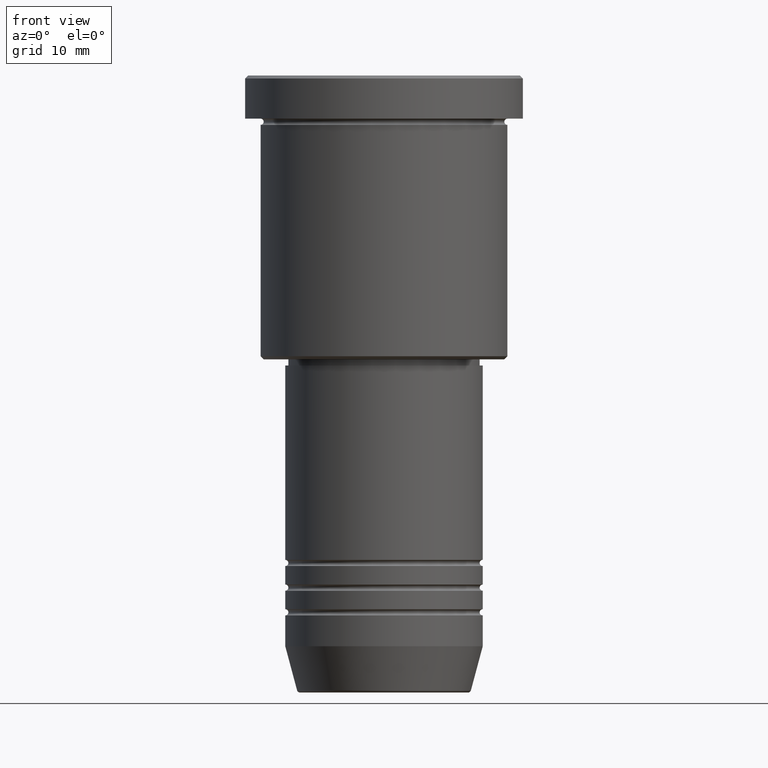
[diagram: clean part render]
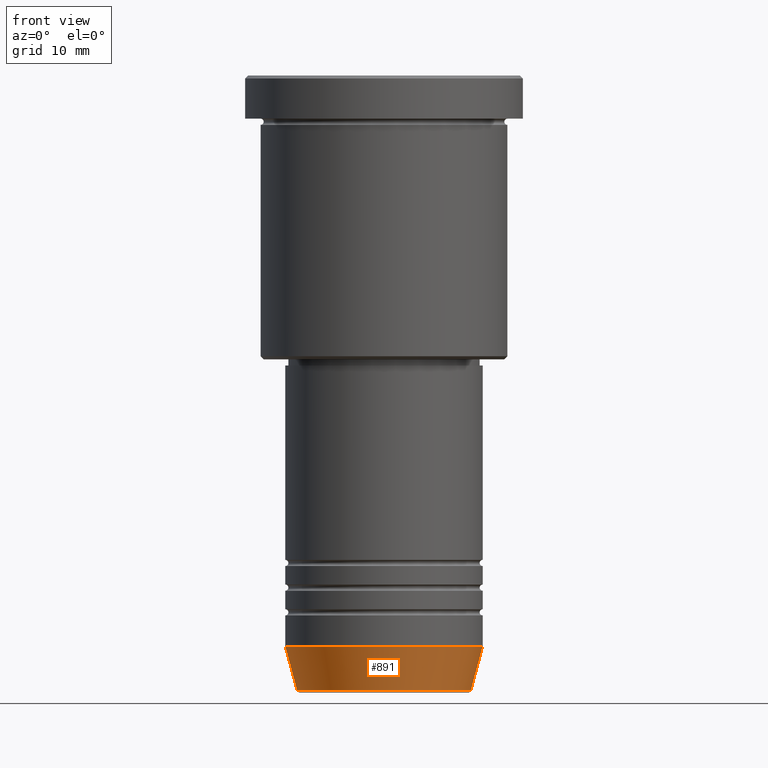
[diagram: same view with one face highlighted and labeled with its STEP entity id]
A machine part, front view. The second image highlights one B-rep face of the part: STEP entity #891.
In plain terms, the highlighted conical surface has half-angle 15 deg.
Its self-contained STEP definition (entity closure, byte-faithful):
#57 = DIRECTION ( 'NONE',  ( -0.000000000000000000, -0.000000000000000000, 1.000000000000000000 ) ) ;
#72 = VECTOR ( 'NONE', #262, 1000.000000000000000 ) ;
#82 = FACE_OUTER_BOUND ( 'NONE', #444, .T. ) ;
#161 = CARTESIAN_POINT ( 'NONE',  ( 0.000000000000000000, 0.000000000000000000, -92.50000000000000000 ) ) ;
#218 = CARTESIAN_POINT ( 'NONE',  ( 16.00000000000000000, 0.000000000000000000, -92.50000000000000000 ) ) ;
#233 = CARTESIAN_POINT ( 'NONE',  ( 14.08968047592162698, 0.000000000000000000, -99.62940952255127058 ) ) ;
#250 = VERTEX_POINT ( 'NONE', #218 ) ;
#254 = DIRECTION ( 'NONE',  ( 1.000000000000000000, 0.000000000000000000, 0.000000000000000000 ) ) ;
#262 = DIRECTION ( 'NONE',  ( 0.2588190451025213501, 0.000000000000000000, 0.9659258262890680902 ) ) ;
#271 = ORIENTED_EDGE ( 'NONE', *, *, #1183, .F. ) ;
#299 = VECTOR ( 'NONE', #864, 1000.000000000000000 ) ;
#316 = AXIS2_PLACEMENT_3D ( 'NONE', #161, #57, #970 ) ;
#317 = ORIENTED_EDGE ( 'NONE', *, *, #493, .T. ) ;
#333 = CIRCLE ( 'NONE', #1157, 16.00000000000000000 ) ;
#358 = VERTEX_POINT ( 'NONE', #686 ) ;
#384 = CARTESIAN_POINT ( 'NONE',  ( 0.000000000000000000, 0.000000000000000000, -99.62940952255127058 ) ) ;
#425 = CARTESIAN_POINT ( 'NONE',  ( 0.000000000000000000, 0.000000000000000000, -92.50000000000000000 ) ) ;
#444 = EDGE_LOOP ( 'NONE', ( #271, #666, #317, #1162 ) ) ;
#453 = LINE ( 'NONE', #718, #72 ) ;
#457 = VERTEX_POINT ( 'NONE', #1006 ) ;
#493 = EDGE_CURVE ( 'NONE', #862, #250, #453, .T. ) ;
#497 = CONICAL_SURFACE ( 'NONE', #316, 16.00000000000000000, 0.2617993877991500740 ) ;
#537 = AXIS2_PLACEMENT_3D ( 'NONE', #384, #661, #1121 ) ;
#585 = CARTESIAN_POINT ( 'NONE',  ( -16.00000000000000000, 1.959434878635765131E-15, -92.50000000000000000 ) ) ;
#588 = EDGE_CURVE ( 'NONE', #457, #862, #1143, .T. ) ;
#661 = DIRECTION ( 'NONE',  ( -0.000000000000000000, -0.000000000000000000, 1.000000000000000000 ) ) ;
#666 = ORIENTED_EDGE ( 'NONE', *, *, #588, .T. ) ;
#686 = CARTESIAN_POINT ( 'NONE',  ( -16.00000000000000000, 1.959434878635765131E-15, -92.50000000000000000 ) ) ;
#718 = CARTESIAN_POINT ( 'NONE',  ( 16.00000000000000000, 0.000000000000000000, -92.50000000000000000 ) ) ;
#862 = VERTEX_POINT ( 'NONE', #233 ) ;
#864 = DIRECTION ( 'NONE',  ( -0.2588190451025213501, 3.169619151431772337E-17, 0.9659258262890680902 ) ) ;
#891 = ADVANCED_FACE ( 'NONE', ( #82 ), #497, .T. ) ;
#970 = DIRECTION ( 'NONE',  ( 1.000000000000000000, 0.000000000000000000, 0.000000000000000000 ) ) ;
#1006 = CARTESIAN_POINT ( 'NONE',  ( -14.08968047592162698, 1.842461544110201269E-15, -99.62940952255127058 ) ) ;
#1008 = EDGE_CURVE ( 'NONE', #358, #250, #333, .T. ) ;
#1040 = LINE ( 'NONE', #585, #299 ) ;
#1121 = DIRECTION ( 'NONE',  ( 1.000000000000000000, 0.000000000000000000, 0.000000000000000000 ) ) ;
#1143 = CIRCLE ( 'NONE', #537, 14.08968047592162698 ) ;
#1157 = AXIS2_PLACEMENT_3D ( 'NONE', #425, #1164, #254 ) ;
#1162 = ORIENTED_EDGE ( 'NONE', *, *, #1008, .F. ) ;
#1164 = DIRECTION ( 'NONE',  ( -0.000000000000000000, -0.000000000000000000, 1.000000000000000000 ) ) ;
#1183 = EDGE_CURVE ( 'NONE', #457, #358, #1040, .T. ) ;